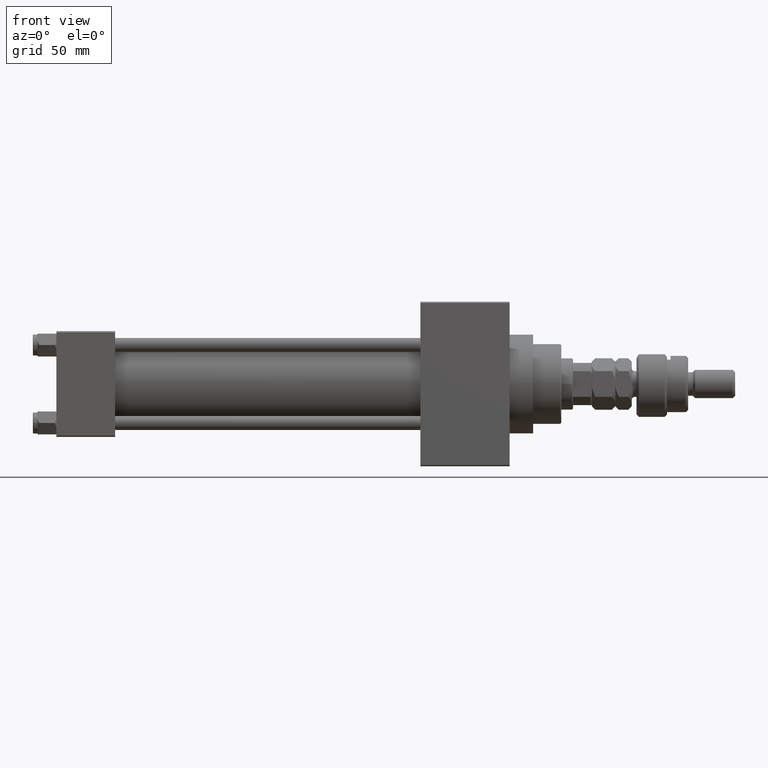
[diagram: clean part render]
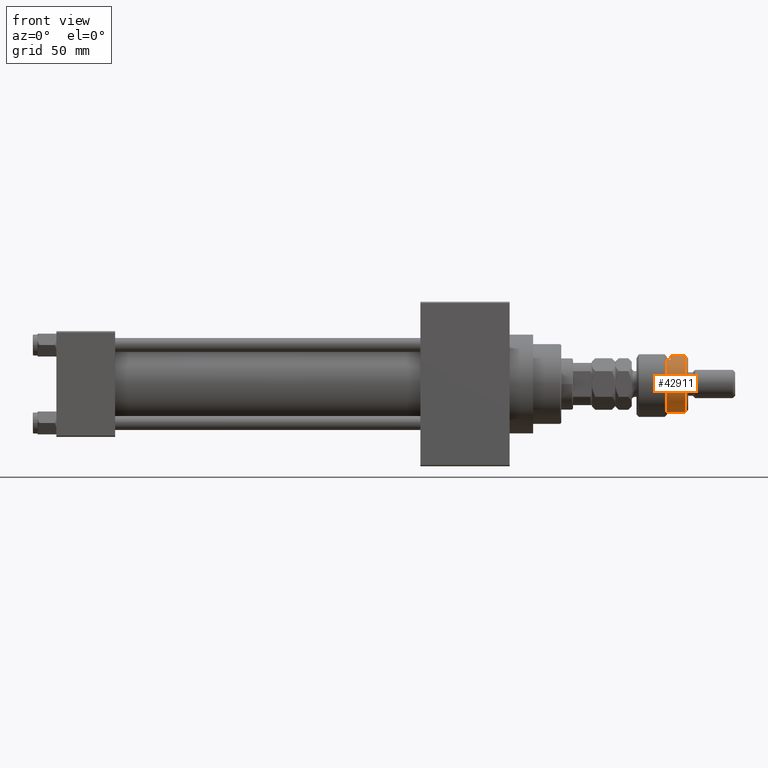
[diagram: same view with one face highlighted and labeled with its STEP entity id]
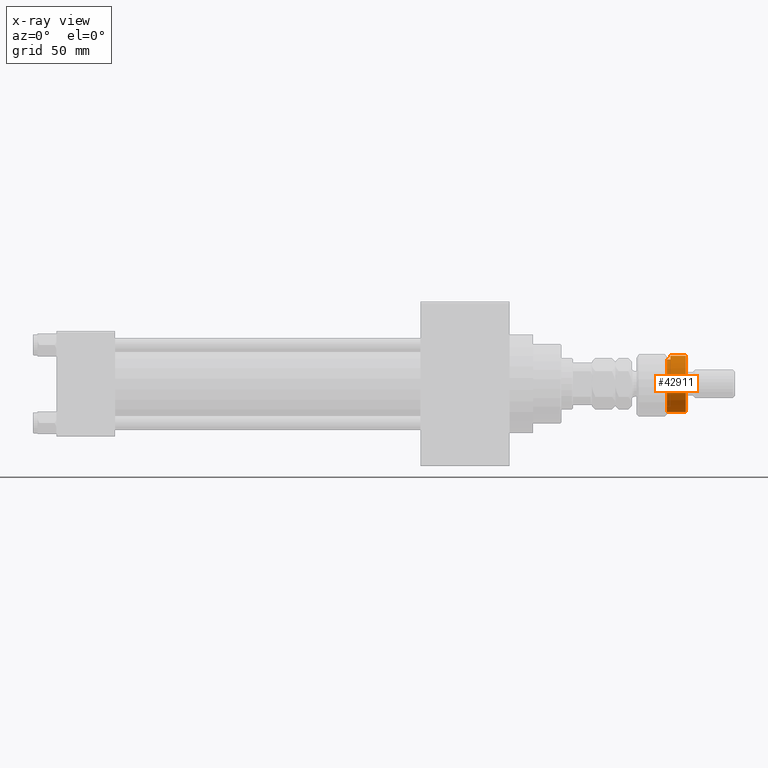
[diagram: x-ray of the same camera — body ghosted, the highlighted face saturated]
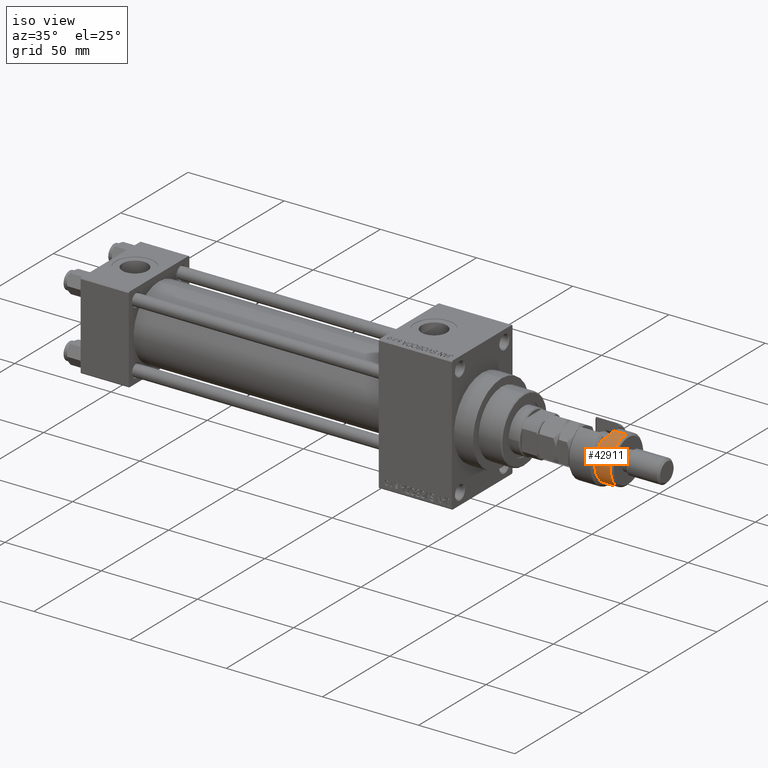
[diagram: same view with one face highlighted and labeled with its STEP entity id]
A machine part, front view. The second image highlights one B-rep face of the part: STEP entity #42911.
The next image is the same camera in x-ray: the body ghosted, the highlighted face saturated — about 0% of this face is hidden behind the body in this view.
A second angle (iso view) of the same face is appended — the face is thin or edge-on in the first view.
In plain terms, the highlighted cylindrical surface (edge-blend (fillet) strip) has radius 12 mm, axis along (-1, -0, 0).
Its self-contained STEP definition (entity closure, byte-faithful):
#609 = AXIS2_PLACEMENT_3D ( 'NONE', #25711, #25971, #27268 ) ;
#2146 = DIRECTION ( 'NONE',  ( 0.000000000000000000, 0.000000000000000000, 1.000000000000000000 ) ) ;
#4325 = DIRECTION ( 'NONE',  ( -0.000000000000000000, -0.000000000000000000, -1.000000000000000000 ) ) ;
#5083 = VECTOR ( 'NONE', #18205, 1000.000000000000000 ) ;
#5673 = DIRECTION ( 'NONE',  ( -0.000000000000000000, -0.000000000000000000, -1.000000000000000000 ) ) ;
#6512 = EDGE_CURVE ( 'NONE', #46472, #21459, #38342, .T. ) ;
#7830 = AXIS2_PLACEMENT_3D ( 'NONE', #36377, #40044, #11957 ) ;
#8276 = CYLINDRICAL_SURFACE ( 'NONE', #7830, 12.00000000000000178 ) ;
#10315 = CARTESIAN_POINT ( 'NONE',  ( 0.000000000000000000, 0.000000000000000000, 13.00000000000000000 ) ) ;
#10585 = CARTESIAN_POINT ( 'NONE',  ( -12.00000000000000178, 0.000000000000000000, 22.00000000000000000 ) ) ;
#11957 = DIRECTION ( 'NONE',  ( -1.000000000000000000, 0.000000000000000000, 0.000000000000000000 ) ) ;
#13894 = DIRECTION ( 'NONE',  ( 1.000000000000000000, 0.000000000000000000, 0.000000000000000000 ) ) ;
#14170 = ORIENTED_EDGE ( 'NONE', *, *, #17426, .F. ) ;
#16661 = CARTESIAN_POINT ( 'NONE',  ( 12.00000000000000178, 1.469576158976824144E-15, 13.00000000000000000 ) ) ;
#17426 = EDGE_CURVE ( 'NONE', #33063, #36606, #48453, .T. ) ;
#17487 = EDGE_CURVE ( 'NONE', #24394, #21459, #41828, .T. ) ;
#18096 = CARTESIAN_POINT ( 'NONE',  ( 0.000000000000000000, 0.000000000000000000, 20.99999999999998224 ) ) ;
#18205 = DIRECTION ( 'NONE',  ( -0.000000000000000000, -0.000000000000000000, -1.000000000000000000 ) ) ;
#21459 = VERTEX_POINT ( 'NONE', #22085 ) ;
#21958 = ORIENTED_EDGE ( 'NONE', *, *, #32340, .T. ) ;
#22085 = CARTESIAN_POINT ( 'NONE',  ( -12.00000000000000178, 0.000000000000000000, 14.50000000000000000 ) ) ;
#23036 = ORIENTED_EDGE ( 'NONE', *, *, #46122, .T. ) ;
#24394 = VERTEX_POINT ( 'NONE', #49261 ) ;
#25141 = VECTOR ( 'NONE', #5673, 1000.000000000000000 ) ;
#25639 = LINE ( 'NONE', #41652, #25141 ) ;
#25711 = CARTESIAN_POINT ( 'NONE',  ( 0.000000000000000000, 0.000000000000000000, 14.50000000000000000 ) ) ;
#25971 = DIRECTION ( 'NONE',  ( 0.000000000000000000, 0.000000000000000000, -1.000000000000000000 ) ) ;
#26735 = ORIENTED_EDGE ( 'NONE', *, *, #17487, .T. ) ;
#26843 = DIRECTION ( 'NONE',  ( 1.000000000000000000, 0.000000000000000000, 0.000000000000000000 ) ) ;
#26971 = ORIENTED_EDGE ( 'NONE', *, *, #48939, .T. ) ;
#27268 = DIRECTION ( 'NONE',  ( -1.000000000000000000, 0.000000000000000000, 0.000000000000000000 ) ) ;
#27739 = VECTOR ( 'NONE', #4325, 1000.000000000000000 ) ;
#27966 = FACE_OUTER_BOUND ( 'NONE', #48599, .T. ) ;
#28866 = ORIENTED_EDGE ( 'NONE', *, *, #6512, .F. ) ;
#29844 = AXIS2_PLACEMENT_3D ( 'NONE', #10315, #2146, #26843 ) ;
#32199 = VERTEX_POINT ( 'NONE', #40886 ) ;
#32340 = EDGE_CURVE ( 'NONE', #46472, #32199, #25639, .T. ) ;
#33063 = VERTEX_POINT ( 'NONE', #41981 ) ;
#33926 = AXIS2_PLACEMENT_3D ( 'NONE', #18096, #34109, #13894 ) ;
#34109 = DIRECTION ( 'NONE',  ( 0.000000000000000000, 0.000000000000000000, -1.000000000000000000 ) ) ;
#36377 = CARTESIAN_POINT ( 'NONE',  ( 0.000000000000000000, 0.000000000000000000, 22.00000000000000000 ) ) ;
#36475 = CIRCLE ( 'NONE', #33926, 12.00000000000000178 ) ;
#36606 = VERTEX_POINT ( 'NONE', #16661 ) ;
#38342 = CIRCLE ( 'NONE', #609, 12.00000000000000178 ) ;
#40044 = DIRECTION ( 'NONE',  ( -0.000000000000000000, -0.000000000000000000, -1.000000000000000000 ) ) ;
#40886 = CARTESIAN_POINT ( 'NONE',  ( -10.39230484541326760, -6.000000000000000000, 13.00000000000000000 ) ) ;
#41652 = CARTESIAN_POINT ( 'NONE',  ( -10.39230484541326760, -6.000000000000000000, 22.00000000000000000 ) ) ;
#41828 = LINE ( 'NONE', #10585, #5083 ) ;
#41981 = CARTESIAN_POINT ( 'NONE',  ( 12.00000000000000178, 1.469576158976824144E-15, 20.99999999999998224 ) ) ;
#42911 = ADVANCED_FACE ( 'NONE', ( #27966 ), #8276, .T. ) ;
#44248 = CARTESIAN_POINT ( 'NONE',  ( 12.00000000000000178, 1.469576158976824144E-15, 22.00000000000000000 ) ) ;
#46122 = EDGE_CURVE ( 'NONE', #33063, #24394, #36475, .T. ) ;
#46472 = VERTEX_POINT ( 'NONE', #47161 ) ;
#47161 = CARTESIAN_POINT ( 'NONE',  ( -10.39230484541326582, -5.999999999999998224, 14.50000000000000000 ) ) ;
#48453 = LINE ( 'NONE', #44248, #27739 ) ;
#48599 = EDGE_LOOP ( 'NONE', ( #14170, #23036, #26735, #28866, #21958, #26971 ) ) ;
#48939 = EDGE_CURVE ( 'NONE', #32199, #36606, #49173, .T. ) ;
#49173 = CIRCLE ( 'NONE', #29844, 12.00000000000000178 ) ;
#49261 = CARTESIAN_POINT ( 'NONE',  ( -12.00000000000000178, 0.000000000000000000, 20.99999999999998224 ) ) ;